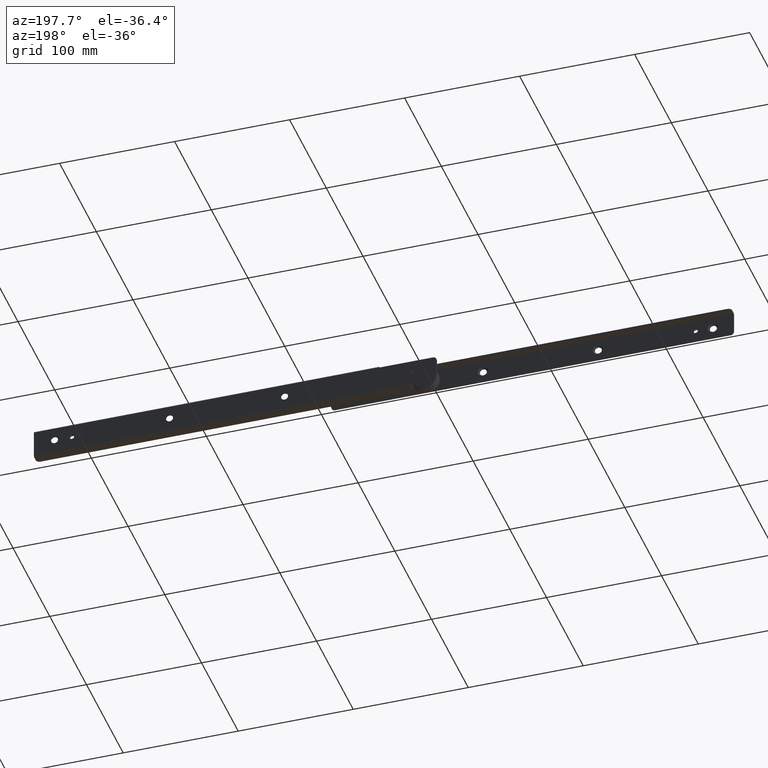
[diagram: clean part render]
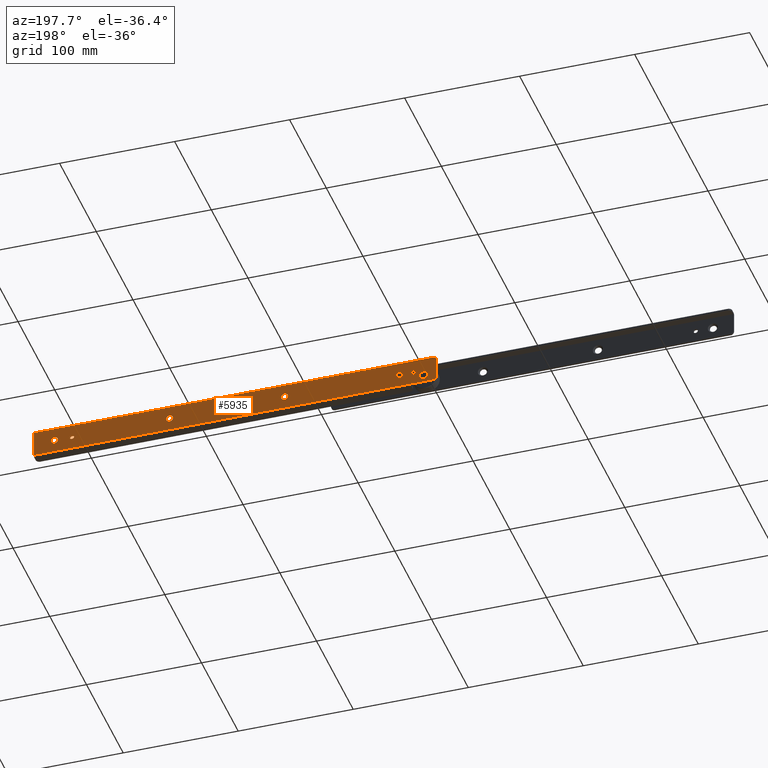
[diagram: same view with one face highlighted and labeled with its STEP entity id]
A machine part, auxiliary view. The second image highlights one B-rep face of the part: STEP entity #5935.
In plain terms, the highlighted face is a freeform B-spline surface patch.
Its self-contained STEP definition (entity closure, byte-faithful):
#3969=CARTESIAN_POINT('',(329.023201358756920,-4.527666E-009,-7.472384037742800));
#3970=VERTEX_POINT('',#3969);
#3971=CARTESIAN_POINT('',(332.0,0.0,-10.100000000000000));
#3972=VERTEX_POINT('',#3971);
#3973=CARTESIAN_POINT('',(329.023201358756860,-4.527666E-009,-7.472384037742800));
#3974=CARTESIAN_POINT('',(329.351904255216770,0.0,-10.100000000000001));
#3975=CARTESIAN_POINT('',(332.0,0.0,-10.100000000000000));
#3983=(BOUNDED_CURVE()B_SPLINE_CURVE(2,(#3973,#3974,#3975),.UNSPECIFIED.,.F.,.U.)B_SPLINE_CURVE_WITH_KNOTS((3,3),(0.271473932488504,0.500000000000000),.UNSPECIFIED.)CURVE()GEOMETRIC_REPRESENTATION_ITEM()RATIONAL_B_SPLINE_CURVE((0.954005423448024,0.732265058015110,1.0))REPRESENTATION_ITEM(''));
#3984=EDGE_CURVE('',#3970,#3972,#3983,.T.);
#4025=CARTESIAN_POINT('',(334.999885770837010,-2.177749E-009,-7.073820379165966));
#4026=VERTEX_POINT('',#4025);
#4032=CARTESIAN_POINT('',(332.0,0.0,-10.100000000000000));
#4033=CARTESIAN_POINT('',(334.999999999999940,0.0,-10.100000000000001));
#4034=CARTESIAN_POINT('',(335.0,0.0,-7.100000000000001));
#4035=CARTESIAN_POINT('',(335.000000000000060,0.0,-7.086909933213613));
#4036=CARTESIAN_POINT('',(334.999885770836950,-2.177749E-009,-7.073820379165966));
#4044=(BOUNDED_CURVE()B_SPLINE_CURVE(2,(#4032,#4033,#4034,#4035,#4036),.UNSPECIFIED.,.F.,.U.)B_SPLINE_CURVE_WITH_KNOTS((3,2,3),(0.500000000000000,0.750000000000000,0.751539896017035),.UNSPECIFIED.)CURVE()GEOMETRIC_REPRESENTATION_ITEM()RATIONAL_B_SPLINE_CURVE((1.0,0.707106781186548,1.0,0.998195899595731,0.996414024207677))REPRESENTATION_ITEM(''));
#4045=EDGE_CURVE('',#3972,#4026,#4044,.T.);
#4072=CARTESIAN_POINT('',(332.0,0.0,-4.100000000000001));
#4073=VERTEX_POINT('',#4072);
#4074=CARTESIAN_POINT('',(332.0,0.0,-4.100000000000001));
#4075=CARTESIAN_POINT('',(328.999999999999940,0.0,-4.100000000000000));
#4076=CARTESIAN_POINT('',(329.0,0.0,-7.100000000000001));
#4077=CARTESIAN_POINT('',(329.0,0.0,-7.286914814010594));
#4078=CARTESIAN_POINT('',(329.023201358756860,-4.527666E-009,-7.472384037742800));
#4086=(BOUNDED_CURVE()B_SPLINE_CURVE(2,(#4074,#4075,#4076,#4077,#4078),.UNSPECIFIED.,.F.,.U.)B_SPLINE_CURVE_WITH_KNOTS((3,2,3),(0.0,0.250000000000000,0.271473932488503),.UNSPECIFIED.)CURVE()GEOMETRIC_REPRESENTATION_ITEM()RATIONAL_B_SPLINE_CURVE((1.0,0.707106781186548,1.0,0.974841723171438,0.954005423448024))REPRESENTATION_ITEM(''));
#4087=EDGE_CURVE('',#4073,#3970,#4086,.T.);
#4089=CARTESIAN_POINT('',(334.999885770836950,-2.177749E-009,-7.073820379165967));
#4090=CARTESIAN_POINT('',(334.973933603384690,0.0,-4.100000000000001));
#4091=CARTESIAN_POINT('',(332.0,0.0,-4.100000000000001));
#4099=(BOUNDED_CURVE()B_SPLINE_CURVE(2,(#4089,#4090,#4091),.UNSPECIFIED.,.F.,.U.)B_SPLINE_CURVE_WITH_KNOTS((3,3),(0.751539896017035,1.0),.UNSPECIFIED.)CURVE()GEOMETRIC_REPRESENTATION_ITEM()RATIONAL_B_SPLINE_CURVE((0.996414024207675,0.708910881590817,1.0))REPRESENTATION_ITEM(''));
#4100=EDGE_CURVE('',#4026,#4073,#4099,.T.);
#4155=CARTESIAN_POINT('',(229.023201358756890,-4.527666E-009,-7.472384037742800));
#4156=VERTEX_POINT('',#4155);
#4157=CARTESIAN_POINT('',(232.0,0.0,-10.100000000000000));
#4158=VERTEX_POINT('',#4157);
#4159=CARTESIAN_POINT('',(229.023201358756860,-4.527666E-009,-7.472384037742800));
#4160=CARTESIAN_POINT('',(229.351904255216710,0.0,-10.100000000000001));
#4161=CARTESIAN_POINT('',(232.0,0.0,-10.100000000000000));
#4169=(BOUNDED_CURVE()B_SPLINE_CURVE(2,(#4159,#4160,#4161),.UNSPECIFIED.,.F.,.U.)B_SPLINE_CURVE_WITH_KNOTS((3,3),(0.271473932488504,0.500000000000000),.UNSPECIFIED.)CURVE()GEOMETRIC_REPRESENTATION_ITEM()RATIONAL_B_SPLINE_CURVE((0.954005423448024,0.732265058015110,1.0))REPRESENTATION_ITEM(''));
#4170=EDGE_CURVE('',#4156,#4158,#4169,.T.);
#4211=CARTESIAN_POINT('',(234.999885770836900,-2.177751E-009,-7.073820379165966));
#4212=VERTEX_POINT('',#4211);
#4218=CARTESIAN_POINT('',(232.0,0.0,-10.100000000000000));
#4219=CARTESIAN_POINT('',(235.000000000000030,0.0,-10.100000000000001));
#4220=CARTESIAN_POINT('',(235.0,0.0,-7.100000000000001));
#4221=CARTESIAN_POINT('',(235.000000000000030,0.0,-7.086909933213613));
#4222=CARTESIAN_POINT('',(234.999885770836930,-2.177751E-009,-7.073820379165966));
#4230=(BOUNDED_CURVE()B_SPLINE_CURVE(2,(#4218,#4219,#4220,#4221,#4222),.UNSPECIFIED.,.F.,.U.)B_SPLINE_CURVE_WITH_KNOTS((3,2,3),(0.500000000000000,0.750000000000000,0.751539896017035),.UNSPECIFIED.)CURVE()GEOMETRIC_REPRESENTATION_ITEM()RATIONAL_B_SPLINE_CURVE((1.0,0.707106781186548,1.0,0.998195899595731,0.996414024207677))REPRESENTATION_ITEM(''));
#4231=EDGE_CURVE('',#4158,#4212,#4230,.T.);
#4258=CARTESIAN_POINT('',(232.0,0.0,-4.100000000000001));
#4259=VERTEX_POINT('',#4258);
#4260=CARTESIAN_POINT('',(232.0,0.0,-4.100000000000001));
#4261=CARTESIAN_POINT('',(229.000000000000030,0.0,-4.100000000000000));
#4262=CARTESIAN_POINT('',(229.0,0.0,-7.100000000000001));
#4263=CARTESIAN_POINT('',(228.999999999999970,0.0,-7.286914814010594));
#4264=CARTESIAN_POINT('',(229.023201358756860,-4.527666E-009,-7.472384037742800));
#4272=(BOUNDED_CURVE()B_SPLINE_CURVE(2,(#4260,#4261,#4262,#4263,#4264),.UNSPECIFIED.,.F.,.U.)B_SPLINE_CURVE_WITH_KNOTS((3,2,3),(0.0,0.250000000000000,0.271473932488503),.UNSPECIFIED.)CURVE()GEOMETRIC_REPRESENTATION_ITEM()RATIONAL_B_SPLINE_CURVE((1.0,0.707106781186548,1.0,0.974841723171438,0.954005423448024))REPRESENTATION_ITEM(''));
#4273=EDGE_CURVE('',#4259,#4156,#4272,.T.);
#4275=CARTESIAN_POINT('',(234.999885770836900,-2.177751E-009,-7.073820379165967));
#4276=CARTESIAN_POINT('',(234.973933603384780,0.0,-4.100000000000001));
#4277=CARTESIAN_POINT('',(232.0,0.0,-4.100000000000001));
#4285=(BOUNDED_CURVE()B_SPLINE_CURVE(2,(#4275,#4276,#4277),.UNSPECIFIED.,.F.,.U.)B_SPLINE_CURVE_WITH_KNOTS((3,3),(0.751539896017035,1.0),.UNSPECIFIED.)CURVE()GEOMETRIC_REPRESENTATION_ITEM()RATIONAL_B_SPLINE_CURVE((0.996414024207675,0.708910881590817,1.0))REPRESENTATION_ITEM(''));
#4286=EDGE_CURVE('',#4212,#4259,#4285,.T.);
#4341=CARTESIAN_POINT('',(129.023201358756890,-4.527666E-009,-7.472384037742800));
#4342=VERTEX_POINT('',#4341);
#4343=CARTESIAN_POINT('',(132.0,0.0,-10.100000000000000));
#4344=VERTEX_POINT('',#4343);
#4345=CARTESIAN_POINT('',(129.023201358756920,-4.527666E-009,-7.472384037742800));
#4346=CARTESIAN_POINT('',(129.351904255216770,0.0,-10.100000000000001));
#4347=CARTESIAN_POINT('',(132.0,0.0,-10.100000000000000));
#4355=(BOUNDED_CURVE()B_SPLINE_CURVE(2,(#4345,#4346,#4347),.UNSPECIFIED.,.F.,.U.)B_SPLINE_CURVE_WITH_KNOTS((3,3),(0.271473932488504,0.500000000000000),.UNSPECIFIED.)CURVE()GEOMETRIC_REPRESENTATION_ITEM()RATIONAL_B_SPLINE_CURVE((0.954005423448024,0.732265058015110,1.0))REPRESENTATION_ITEM(''));
#4356=EDGE_CURVE('',#4342,#4344,#4355,.T.);
#4397=CARTESIAN_POINT('',(134.999885770836900,-2.177751E-009,-7.073820379165966));
#4398=VERTEX_POINT('',#4397);
#4404=CARTESIAN_POINT('',(132.0,0.0,-10.100000000000000));
#4405=CARTESIAN_POINT('',(135.0,0.0,-10.100000000000001));
#4406=CARTESIAN_POINT('',(135.0,0.0,-7.100000000000001));
#4407=CARTESIAN_POINT('',(135.000000000000030,0.0,-7.086909933213613));
#4408=CARTESIAN_POINT('',(134.999885770836900,-2.177751E-009,-7.073820379165966));
#4416=(BOUNDED_CURVE()B_SPLINE_CURVE(2,(#4404,#4405,#4406,#4407,#4408),.UNSPECIFIED.,.F.,.U.)B_SPLINE_CURVE_WITH_KNOTS((3,2,3),(0.500000000000000,0.750000000000000,0.751539896017035),.UNSPECIFIED.)CURVE()GEOMETRIC_REPRESENTATION_ITEM()RATIONAL_B_SPLINE_CURVE((1.0,0.707106781186548,1.0,0.998195899595731,0.996414024207677))REPRESENTATION_ITEM(''));
#4417=EDGE_CURVE('',#4344,#4398,#4416,.T.);
#4444=CARTESIAN_POINT('',(132.0,0.0,-4.100000000000001));
#4445=VERTEX_POINT('',#4444);
#4446=CARTESIAN_POINT('',(132.0,0.0,-4.100000000000001));
#4447=CARTESIAN_POINT('',(129.0,0.0,-4.100000000000000));
#4448=CARTESIAN_POINT('',(129.0,0.0,-7.100000000000001));
#4449=CARTESIAN_POINT('',(129.000000000000060,0.0,-7.286914814010594));
#4450=CARTESIAN_POINT('',(129.023201358756920,-4.527666E-009,-7.472384037742800));
#4458=(BOUNDED_CURVE()B_SPLINE_CURVE(2,(#4446,#4447,#4448,#4449,#4450),.UNSPECIFIED.,.F.,.U.)B_SPLINE_CURVE_WITH_KNOTS((3,2,3),(0.0,0.250000000000000,0.271473932488503),.UNSPECIFIED.)CURVE()GEOMETRIC_REPRESENTATION_ITEM()RATIONAL_B_SPLINE_CURVE((1.0,0.707106781186548,1.0,0.974841723171438,0.954005423448024))REPRESENTATION_ITEM(''));
#4459=EDGE_CURVE('',#4445,#4342,#4458,.T.);
#4461=CARTESIAN_POINT('',(134.999885770836900,-2.177751E-009,-7.073820379165967));
#4462=CARTESIAN_POINT('',(134.973933603384720,0.0,-4.100000000000001));
#4463=CARTESIAN_POINT('',(132.0,0.0,-4.100000000000001));
#4471=(BOUNDED_CURVE()B_SPLINE_CURVE(2,(#4461,#4462,#4463),.UNSPECIFIED.,.F.,.U.)B_SPLINE_CURVE_WITH_KNOTS((3,3),(0.751539896017035,1.0),.UNSPECIFIED.)CURVE()GEOMETRIC_REPRESENTATION_ITEM()RATIONAL_B_SPLINE_CURVE((0.996414024207675,0.708910881590817,1.0))REPRESENTATION_ITEM(''));
#4472=EDGE_CURVE('',#4398,#4445,#4471,.T.);
#4527=CARTESIAN_POINT('',(29.023201358756861,-4.527666E-009,-7.472384037742597));
#4528=VERTEX_POINT('',#4527);
#4529=CARTESIAN_POINT('',(32.0,0.0,-10.099999999999801));
#4530=VERTEX_POINT('',#4529);
#4531=CARTESIAN_POINT('',(29.023201358756854,-4.527666E-009,-7.472384037742597));
#4532=CARTESIAN_POINT('',(29.351904255216727,0.0,-10.099999999999801));
#4533=CARTESIAN_POINT('',(32.0,0.0,-10.099999999999801));
#4541=(BOUNDED_CURVE()B_SPLINE_CURVE(2,(#4531,#4532,#4533),.UNSPECIFIED.,.F.,.U.)B_SPLINE_CURVE_WITH_KNOTS((3,3),(0.271473932488504,0.500000000000000),.UNSPECIFIED.)CURVE()GEOMETRIC_REPRESENTATION_ITEM()RATIONAL_B_SPLINE_CURVE((0.954005423448024,0.732265058015110,1.0))REPRESENTATION_ITEM(''));
#4542=EDGE_CURVE('',#4528,#4530,#4541,.T.);
#4583=CARTESIAN_POINT('',(34.999885770836912,-2.177750E-009,-7.073820379165763));
#4584=VERTEX_POINT('',#4583);
#4590=CARTESIAN_POINT('',(32.0,0.0,-10.099999999999801));
#4591=CARTESIAN_POINT('',(34.999999999999993,0.0,-10.099999999999801));
#4592=CARTESIAN_POINT('',(35.0,0.0,-7.099999999999799));
#4593=CARTESIAN_POINT('',(35.0,0.0,-7.086909933213412));
#4594=CARTESIAN_POINT('',(34.999885770836912,-2.177750E-009,-7.073820379165764));
#4602=(BOUNDED_CURVE()B_SPLINE_CURVE(2,(#4590,#4591,#4592,#4593,#4594),.UNSPECIFIED.,.F.,.U.)B_SPLINE_CURVE_WITH_KNOTS((3,2,3),(0.500000000000000,0.750000000000000,0.751539896017035),.UNSPECIFIED.)CURVE()GEOMETRIC_REPRESENTATION_ITEM()RATIONAL_B_SPLINE_CURVE((1.0,0.707106781186548,1.0,0.998195899595731,0.996414024207677))REPRESENTATION_ITEM(''));
#4603=EDGE_CURVE('',#4530,#4584,#4602,.T.);
#4630=CARTESIAN_POINT('',(32.0,0.0,-4.099999999999799));
#4631=VERTEX_POINT('',#4630);
#4632=CARTESIAN_POINT('',(32.0,0.0,-4.099999999999799));
#4633=CARTESIAN_POINT('',(29.0,0.0,-4.099999999999799));
#4634=CARTESIAN_POINT('',(29.0,0.0,-7.099999999999799));
#4635=CARTESIAN_POINT('',(29.000000000000007,0.0,-7.286914814010393));
#4636=CARTESIAN_POINT('',(29.023201358756854,-4.527666E-009,-7.472384037742597));
#4644=(BOUNDED_CURVE()B_SPLINE_CURVE(2,(#4632,#4633,#4634,#4635,#4636),.UNSPECIFIED.,.F.,.U.)B_SPLINE_CURVE_WITH_KNOTS((3,2,3),(0.0,0.250000000000000,0.271473932488503),.UNSPECIFIED.)CURVE()GEOMETRIC_REPRESENTATION_ITEM()RATIONAL_B_SPLINE_CURVE((1.0,0.707106781186548,1.0,0.974841723171438,0.954005423448024))REPRESENTATION_ITEM(''));
#4645=EDGE_CURVE('',#4631,#4528,#4644,.T.);
#4647=CARTESIAN_POINT('',(34.999885770836919,-2.177750E-009,-7.073820379165763));
#4648=CARTESIAN_POINT('',(34.973933603384737,0.0,-4.099999999999798));
#4649=CARTESIAN_POINT('',(32.0,0.0,-4.099999999999799));
#4657=(BOUNDED_CURVE()B_SPLINE_CURVE(2,(#4647,#4648,#4649),.UNSPECIFIED.,.F.,.U.)B_SPLINE_CURVE_WITH_KNOTS((3,3),(0.751539896017035,1.0),.UNSPECIFIED.)CURVE()GEOMETRIC_REPRESENTATION_ITEM()RATIONAL_B_SPLINE_CURVE((0.996414024207675,0.708910881590818,1.0))REPRESENTATION_ITEM(''));
#4658=EDGE_CURVE('',#4584,#4631,#4657,.T.);
#4717=CARTESIAN_POINT('',(8.070621898061873,6.033785E-017,-12.251799000740220));
#4718=VERTEX_POINT('',#4717);
#4719=CARTESIAN_POINT('',(11.0,0.0,-15.549999999999800));
#4720=VERTEX_POINT('',#4719);
#4721=CARTESIAN_POINT('',(8.070621898061873,6.033785E-017,-12.251799000740229));
#4722=CARTESIAN_POINT('',(8.050000000000001,0.0,-12.425288839930291));
#4723=CARTESIAN_POINT('',(8.050000000000001,0.0,-12.599999999999801));
#4724=CARTESIAN_POINT('',(8.050000000000001,0.0,-15.549999999999795));
#4725=CARTESIAN_POINT('',(11.0,0.0,-15.549999999999800));
#4733=(BOUNDED_CURVE()B_SPLINE_CURVE(2,(#4721,#4722,#4723,#4724,#4725),.UNSPECIFIED.,.F.,.U.)B_SPLINE_CURVE_WITH_KNOTS((3,2,3),(0.229562472705394,0.250000000000000,0.500000000000000),.UNSPECIFIED.)CURVE()GEOMETRIC_REPRESENTATION_ITEM()RATIONAL_B_SPLINE_CURVE((0.956026752599763,0.976055947384381,1.0,0.707106781186548,1.0))REPRESENTATION_ITEM(''));
#4734=EDGE_CURVE('',#4718,#4720,#4733,.T.);
#4775=CARTESIAN_POINT('',(13.944497655040470,-3.816392E-017,-12.780093196598660));
#4776=VERTEX_POINT('',#4775);
#4782=CARTESIAN_POINT('',(11.0,0.0,-15.549999999999800));
#4783=CARTESIAN_POINT('',(13.775082887984260,0.0,-15.549999999999800));
#4784=CARTESIAN_POINT('',(13.944497655040465,-3.816392E-017,-12.780093196598656));
#4792=(BOUNDED_CURVE()B_SPLINE_CURVE(2,(#4782,#4783,#4784),.UNSPECIFIED.,.F.,.U.)B_SPLINE_CURVE_WITH_KNOTS((3,3),(0.500000000000000,0.739332961659366),.UNSPECIFIED.)CURVE()GEOMETRIC_REPRESENTATION_ITEM()RATIONAL_B_SPLINE_CURVE((1.0,0.719603993965726,0.976072040424575))REPRESENTATION_ITEM(''));
#4793=EDGE_CURVE('',#4720,#4776,#4792,.T.);
#4816=CARTESIAN_POINT('',(11.0,0.0,-9.649999999999800));
#4817=VERTEX_POINT('',#4816);
#4818=CARTESIAN_POINT('',(11.0,0.0,-9.649999999999800));
#4819=CARTESIAN_POINT('',(8.379885161093478,0.0,-9.649999999999801));
#4820=CARTESIAN_POINT('',(8.070621898061873,6.033785E-017,-12.251799000740222));
#4828=(BOUNDED_CURVE()B_SPLINE_CURVE(2,(#4818,#4819,#4820),.UNSPECIFIED.,.F.,.U.)B_SPLINE_CURVE_WITH_KNOTS((3,3),(0.0,0.229562472705394),.UNSPECIFIED.)CURVE()GEOMETRIC_REPRESENTATION_ITEM()RATIONAL_B_SPLINE_CURVE((1.0,0.731050833802167,0.956026752599763))REPRESENTATION_ITEM(''));
#4829=EDGE_CURVE('',#4817,#4718,#4828,.T.);
#4831=CARTESIAN_POINT('',(13.944497655040465,-3.816392E-017,-12.780093196598656));
#4832=CARTESIAN_POINT('',(13.950000000000005,0.0,-12.690130656715603));
#4833=CARTESIAN_POINT('',(13.949999999999999,0.0,-12.599999999999801));
#4834=CARTESIAN_POINT('',(13.949999999999999,0.0,-9.649999999999800));
#4835=CARTESIAN_POINT('',(11.0,0.0,-9.649999999999800));
#4843=(BOUNDED_CURVE()B_SPLINE_CURVE(2,(#4831,#4832,#4833,#4834,#4835),.UNSPECIFIED.,.F.,.U.)B_SPLINE_CURVE_WITH_KNOTS((3,2,3),(0.739332961659366,0.750000000000000,1.0),.UNSPECIFIED.)CURVE()GEOMETRIC_REPRESENTATION_ITEM()RATIONAL_B_SPLINE_CURVE((0.976072040424575,0.987502787220821,1.0,0.707106781186548,1.0))REPRESENTATION_ITEM(''));
#4844=EDGE_CURVE('',#4776,#4817,#4843,.T.);
#4903=CARTESIAN_POINT('',(18.013980948035350,-3.549285E-017,-6.863931524269974));
#4904=VERTEX_POINT('',#4903);
#4905=CARTESIAN_POINT('',(20.0,0.0,-9.099999999999799));
#4906=VERTEX_POINT('',#4905);
#4907=CARTESIAN_POINT('',(18.013980948035350,-3.549285E-017,-6.863931524269974));
#4908=CARTESIAN_POINT('',(18.000000000000004,0.0,-6.981551754211840));
#4909=CARTESIAN_POINT('',(18.0,0.0,-7.099999999999799));
#4910=CARTESIAN_POINT('',(18.000000000000007,0.0,-9.099999999999799));
#4911=CARTESIAN_POINT('',(20.0,0.0,-9.099999999999799));
#4919=(BOUNDED_CURVE()B_SPLINE_CURVE(2,(#4907,#4908,#4909,#4910,#4911),.UNSPECIFIED.,.F.,.U.)B_SPLINE_CURVE_WITH_KNOTS((3,2,3),(0.229562472423634,0.250000000000000,0.500000000000000),.UNSPECIFIED.)CURVE()GEOMETRIC_REPRESENTATION_ITEM()RATIONAL_B_SPLINE_CURVE((0.956026752047501,0.976055947054278,1.0,0.707106781186548,1.0))REPRESENTATION_ITEM(''));
#4920=EDGE_CURVE('',#4904,#4906,#4919,.T.);
#4961=CARTESIAN_POINT('',(21.996269596842609,5.551115E-017,-7.222097079087931));
#4962=VERTEX_POINT('',#4961);
#4968=CARTESIAN_POINT('',(20.0,0.0,-9.099999999999799));
#4969=CARTESIAN_POINT('',(21.881412133776614,0.0,-9.099999999999801));
#4970=CARTESIAN_POINT('',(21.996269596842609,5.551115E-017,-7.222097079087931));
#4978=(BOUNDED_CURVE()B_SPLINE_CURVE(2,(#4968,#4969,#4970),.UNSPECIFIED.,.F.,.U.)B_SPLINE_CURVE_WITH_KNOTS((3,3),(0.500000000000000,0.739332962238785),.UNSPECIFIED.)CURVE()GEOMETRIC_REPRESENTATION_ITEM()RATIONAL_B_SPLINE_CURVE((1.0,0.719603993286895,0.976072041666380))REPRESENTATION_ITEM(''));
#4979=EDGE_CURVE('',#4906,#4962,#4978,.T.);
#5002=CARTESIAN_POINT('',(20.0,0.0,-5.099999999999799));
#5003=VERTEX_POINT('',#5002);
#5004=CARTESIAN_POINT('',(20.0,0.0,-5.099999999999799));
#5005=CARTESIAN_POINT('',(18.223650959655906,0.0,-5.099999999999800));
#5006=CARTESIAN_POINT('',(18.013980948035346,-3.549285E-017,-6.863931524269974));
#5014=(BOUNDED_CURVE()B_SPLINE_CURVE(2,(#5004,#5005,#5006),.UNSPECIFIED.,.F.,.U.)B_SPLINE_CURVE_WITH_KNOTS((3,3),(0.0,0.229562472423634),.UNSPECIFIED.)CURVE()GEOMETRIC_REPRESENTATION_ITEM()RATIONAL_B_SPLINE_CURVE((1.0,0.731050834132270,0.956026752047501))REPRESENTATION_ITEM(''));
#5015=EDGE_CURVE('',#5003,#4904,#5014,.T.);
#5017=CARTESIAN_POINT('',(21.996269596842605,5.551115E-017,-7.222097079087931));
#5018=CARTESIAN_POINT('',(22.000000000000004,0.0,-7.161105526615446));
#5019=CARTESIAN_POINT('',(22.0,0.0,-7.099999999999799));
#5020=CARTESIAN_POINT('',(22.000000000000007,0.0,-5.099999999999798));
#5021=CARTESIAN_POINT('',(20.0,0.0,-5.099999999999799));
#5029=(BOUNDED_CURVE()B_SPLINE_CURVE(2,(#5017,#5018,#5019,#5020,#5021),.UNSPECIFIED.,.F.,.U.)B_SPLINE_CURVE_WITH_KNOTS((3,2,3),(0.739332962238784,0.750000000000000,1.0),.UNSPECIFIED.)CURVE()GEOMETRIC_REPRESENTATION_ITEM()RATIONAL_B_SPLINE_CURVE((0.976072041666378,0.987502787899652,1.0,0.707106781186548,1.0))REPRESENTATION_ITEM(''));
#5030=EDGE_CURVE('',#4962,#5003,#5029,.T.);
#5089=CARTESIAN_POINT('',(315.013980948035280,-3.549285E-017,-6.863931524270178));
#5090=VERTEX_POINT('',#5089);
#5091=CARTESIAN_POINT('',(317.0,0.0,-9.100000000000000));
#5092=VERTEX_POINT('',#5091);
#5093=CARTESIAN_POINT('',(315.013980948035280,-3.549285E-017,-6.863931524270178));
#5094=CARTESIAN_POINT('',(315.000000000000060,0.0,-6.981551754212042));
#5095=CARTESIAN_POINT('',(315.0,0.0,-7.100000000000001));
#5096=CARTESIAN_POINT('',(315.000000000000060,0.0,-9.100000000000000));
#5097=CARTESIAN_POINT('',(317.0,0.0,-9.100000000000000));
#5105=(BOUNDED_CURVE()B_SPLINE_CURVE(2,(#5093,#5094,#5095,#5096,#5097),.UNSPECIFIED.,.F.,.U.)B_SPLINE_CURVE_WITH_KNOTS((3,2,3),(0.229562472423634,0.250000000000000,0.500000000000000),.UNSPECIFIED.)CURVE()GEOMETRIC_REPRESENTATION_ITEM()RATIONAL_B_SPLINE_CURVE((0.956026752047501,0.976055947054278,1.0,0.707106781186548,1.0))REPRESENTATION_ITEM(''));
#5106=EDGE_CURVE('',#5090,#5092,#5105,.T.);
#5147=CARTESIAN_POINT('',(318.996269596842580,5.551115E-017,-7.222097079088133));
#5148=VERTEX_POINT('',#5147);
#5154=CARTESIAN_POINT('',(317.0,0.0,-9.100000000000000));
#5155=CARTESIAN_POINT('',(318.881412133776620,0.0,-9.100000000000000));
#5156=CARTESIAN_POINT('',(318.996269596842580,5.551115E-017,-7.222097079088133));
#5164=(BOUNDED_CURVE()B_SPLINE_CURVE(2,(#5154,#5155,#5156),.UNSPECIFIED.,.F.,.U.)B_SPLINE_CURVE_WITH_KNOTS((3,3),(0.500000000000000,0.739332962238785),.UNSPECIFIED.)CURVE()GEOMETRIC_REPRESENTATION_ITEM()RATIONAL_B_SPLINE_CURVE((1.0,0.719603993286895,0.976072041666380))REPRESENTATION_ITEM(''));
#5165=EDGE_CURVE('',#5092,#5148,#5164,.T.);
#5188=CARTESIAN_POINT('',(317.0,0.0,-5.100000000000001));
#5189=VERTEX_POINT('',#5188);
#5190=CARTESIAN_POINT('',(317.0,0.0,-5.100000000000001));
#5191=CARTESIAN_POINT('',(315.223650959655910,0.0,-5.100000000000000));
#5192=CARTESIAN_POINT('',(315.013980948035280,-3.549285E-017,-6.863931524270178));
#5200=(BOUNDED_CURVE()B_SPLINE_CURVE(2,(#5190,#5191,#5192),.UNSPECIFIED.,.F.,.U.)B_SPLINE_CURVE_WITH_KNOTS((3,3),(0.0,0.229562472423634),.UNSPECIFIED.)CURVE()GEOMETRIC_REPRESENTATION_ITEM()RATIONAL_B_SPLINE_CURVE((1.0,0.731050834132270,0.956026752047501))REPRESENTATION_ITEM(''));
#5201=EDGE_CURVE('',#5189,#5090,#5200,.T.);
#5203=CARTESIAN_POINT('',(318.996269596842640,5.551115E-017,-7.222097079088133));
#5204=CARTESIAN_POINT('',(319.0,0.0,-7.161105526615650));
#5205=CARTESIAN_POINT('',(319.0,0.0,-7.100000000000001));
#5206=CARTESIAN_POINT('',(319.0,0.0,-5.100000000000001));
#5207=CARTESIAN_POINT('',(317.0,0.0,-5.100000000000001));
#5215=(BOUNDED_CURVE()B_SPLINE_CURVE(2,(#5203,#5204,#5205,#5206,#5207),.UNSPECIFIED.,.F.,.U.)B_SPLINE_CURVE_WITH_KNOTS((3,2,3),(0.739332962238784,0.750000000000000,1.0),.UNSPECIFIED.)CURVE()GEOMETRIC_REPRESENTATION_ITEM()RATIONAL_B_SPLINE_CURVE((0.976072041666378,0.987502787899651,1.0,0.707106781186548,1.0))REPRESENTATION_ITEM(''));
#5216=EDGE_CURVE('',#5148,#5189,#5215,.T.);
#5528=CARTESIAN_POINT('',(3.0,0.0,4.400000000000205));
#5529=VERTEX_POINT('',#5528);
#5535=CARTESIAN_POINT('',(0.0,0.0,1.400000000000202));
#5536=VERTEX_POINT('',#5535);
#5537=CARTESIAN_POINT('',(0.0,0.0,1.400000000000204));
#5538=CARTESIAN_POINT('',(-4.336809E-016,0.0,2.642640687119489));
#5539=CARTESIAN_POINT('',(0.878679656440356,0.0,3.521320343559846));
#5540=CARTESIAN_POINT('',(1.757359312880714,0.0,4.400000000000204));
#5541=CARTESIAN_POINT('',(3.0,0.0,4.400000000000204));
#5549=(BOUNDED_CURVE()B_SPLINE_CURVE(2,(#5537,#5538,#5539,#5540,#5541),.UNSPECIFIED.,.F.,.U.)B_SPLINE_CURVE_WITH_KNOTS((3,2,3),(0.0,0.500000000000000,1.0),.UNSPECIFIED.)CURVE()GEOMETRIC_REPRESENTATION_ITEM()RATIONAL_B_SPLINE_CURVE((1.0,0.923879532511287,1.0,0.923879532511287,1.0))REPRESENTATION_ITEM(''));
#5550=EDGE_CURVE('',#5536,#5529,#5549,.T.);
#5574=CARTESIAN_POINT('',(3.0,0.0,-18.600000000000001));
#5575=VERTEX_POINT('',#5574);
#5576=CARTESIAN_POINT('',(0.0,0.0,-15.600000000000000));
#5577=VERTEX_POINT('',#5576);
#5578=CARTESIAN_POINT('',(3.0,0.0,-18.600000000000001));
#5579=CARTESIAN_POINT('',(0.0,0.0,-18.599999999999991));
#5580=CARTESIAN_POINT('',(0.0,0.0,-15.600000000000000));
#5588=(BOUNDED_CURVE()B_SPLINE_CURVE(2,(#5578,#5579,#5580),.UNSPECIFIED.,.F.,.U.)CURVE()GEOMETRIC_REPRESENTATION_ITEM()QUASI_UNIFORM_CURVE()RATIONAL_B_SPLINE_CURVE((1.0,0.707106781186548,1.0))REPRESENTATION_ITEM(''));
#5589=EDGE_CURVE('',#5575,#5577,#5588,.T.);
#5626=CARTESIAN_POINT('',(50.0,0.0,4.400000000000205));
#5627=VERTEX_POINT('',#5626);
#5628=CARTESIAN_POINT('',(3.0,0.0,4.400000000000205));
#5629=CARTESIAN_POINT('',(50.0,0.0,4.400000000000205));
#5630=QUASI_UNIFORM_CURVE('',1,(#5628,#5629),.UNSPECIFIED.,.F.,.U.);
#5631=EDGE_CURVE('',#5529,#5627,#5630,.T.);
#5697=CARTESIAN_POINT('',(22.0,0.0,-18.600000000000001));
#5698=VERTEX_POINT('',#5697);
#5699=CARTESIAN_POINT('',(22.0,0.0,-18.600000000000001));
#5700=CARTESIAN_POINT('',(3.0,0.0,-18.600000000000001));
#5701=QUASI_UNIFORM_CURVE('',1,(#5699,#5700),.UNSPECIFIED.,.F.,.U.);
#5702=EDGE_CURVE('',#5698,#5575,#5701,.T.);
#5752=CARTESIAN_POINT('',(0.0,0.0,-15.600000000000000));
#5753=CARTESIAN_POINT('',(0.0,0.0,1.400000000000202));
#5754=QUASI_UNIFORM_CURVE('',1,(#5752,#5753),.UNSPECIFIED.,.F.,.U.);
#5755=EDGE_CURVE('',#5577,#5536,#5754,.T.);
#5807=CARTESIAN_POINT('',(350.0,9.237056E-014,-18.600000000000001));
#5808=VERTEX_POINT('',#5807);
#5822=CARTESIAN_POINT('',(350.0,0.0,4.400000000000205));
#5823=VERTEX_POINT('',#5822);
#5824=CARTESIAN_POINT('',(350.0,9.237056E-014,-18.600000000000001));
#5825=CARTESIAN_POINT('',(350.0,0.0,4.400000000000205));
#5826=QUASI_UNIFORM_CURVE('',1,(#5824,#5825),.UNSPECIFIED.,.F.,.U.);
#5827=EDGE_CURVE('',#5808,#5823,#5826,.T.);
#5859=CARTESIAN_POINT('',(350.0,0.0,4.400000000000205));
#5860=CARTESIAN_POINT('',(50.0,0.0,4.400000000000205));
#5861=QUASI_UNIFORM_CURVE('',1,(#5859,#5860),.UNSPECIFIED.,.F.,.U.);
#5862=EDGE_CURVE('',#5823,#5627,#5861,.T.);
#5874=CARTESIAN_POINT('',(-17.482499321632091,0.0,5.548850171329299));
#5875=CARTESIAN_POINT('',(-17.482499321632091,0.0,-19.748850582601140));
#5876=CARTESIAN_POINT('',(367.482508709363570,0.0,5.548850171329299));
#5877=CARTESIAN_POINT('',(367.482508709363570,0.0,-19.748850582601140));
#5878=B_SPLINE_SURFACE_WITH_KNOTS('',1,1,((#5874,#5876),(#5875,#5877)),.UNSPECIFIED.,.F.,.F.,.U.,(2,2),(2,2),(0.0,25.297700753930439),(0.0,384.965008030995700),.UNSPECIFIED.);
#5879=ORIENTED_EDGE('',*,*,#5702,.T.);
#5880=ORIENTED_EDGE('',*,*,#5589,.T.);
#5881=ORIENTED_EDGE('',*,*,#5755,.T.);
#5882=ORIENTED_EDGE('',*,*,#5550,.T.);
#5883=ORIENTED_EDGE('',*,*,#5631,.T.);
#5884=ORIENTED_EDGE('',*,*,#5862,.F.);
#5885=ORIENTED_EDGE('',*,*,#5827,.F.);
#5886=CARTESIAN_POINT('',(350.0,9.237056E-014,-18.600000000000001));
#5887=CARTESIAN_POINT('',(22.0,0.0,-18.600000000000001));
#5888=QUASI_UNIFORM_CURVE('',1,(#5886,#5887),.UNSPECIFIED.,.F.,.U.);
#5889=EDGE_CURVE('',#5808,#5698,#5888,.T.);
#5890=ORIENTED_EDGE('',*,*,#5889,.T.);
#5891=EDGE_LOOP('',(#5879,#5880,#5881,#5882,#5883,#5884,#5885,#5890));
#5892=FACE_OUTER_BOUND('',#5891,.T.);
#5893=ORIENTED_EDGE('',*,*,#5165,.T.);
#5894=ORIENTED_EDGE('',*,*,#5216,.T.);
#5895=ORIENTED_EDGE('',*,*,#5201,.T.);
#5896=ORIENTED_EDGE('',*,*,#5106,.T.);
#5897=EDGE_LOOP('',(#5893,#5894,#5895,#5896));
#5898=FACE_BOUND('',#5897,.T.);
#5899=ORIENTED_EDGE('',*,*,#4979,.T.);
#5900=ORIENTED_EDGE('',*,*,#5030,.T.);
#5901=ORIENTED_EDGE('',*,*,#5015,.T.);
#5902=ORIENTED_EDGE('',*,*,#4920,.T.);
#5903=EDGE_LOOP('',(#5899,#5900,#5901,#5902));
#5904=FACE_BOUND('',#5903,.T.);
#5905=ORIENTED_EDGE('',*,*,#4793,.T.);
#5906=ORIENTED_EDGE('',*,*,#4844,.T.);
#5907=ORIENTED_EDGE('',*,*,#4829,.T.);
#5908=ORIENTED_EDGE('',*,*,#4734,.T.);
#5909=EDGE_LOOP('',(#5905,#5906,#5907,#5908));
#5910=FACE_BOUND('',#5909,.T.);
#5911=ORIENTED_EDGE('',*,*,#4603,.T.);
#5912=ORIENTED_EDGE('',*,*,#4658,.T.);
#5913=ORIENTED_EDGE('',*,*,#4645,.T.);
#5914=ORIENTED_EDGE('',*,*,#4542,.T.);
#5915=EDGE_LOOP('',(#5911,#5912,#5913,#5914));
#5916=FACE_BOUND('',#5915,.T.);
#5917=ORIENTED_EDGE('',*,*,#4417,.T.);
#5918=ORIENTED_EDGE('',*,*,#4472,.T.);
#5919=ORIENTED_EDGE('',*,*,#4459,.T.);
#5920=ORIENTED_EDGE('',*,*,#4356,.T.);
#5921=EDGE_LOOP('',(#5917,#5918,#5919,#5920));
#5922=FACE_BOUND('',#5921,.T.);
#5923=ORIENTED_EDGE('',*,*,#4231,.T.);
#5924=ORIENTED_EDGE('',*,*,#4286,.T.);
#5925=ORIENTED_EDGE('',*,*,#4273,.T.);
#5926=ORIENTED_EDGE('',*,*,#4170,.T.);
#5927=EDGE_LOOP('',(#5923,#5924,#5925,#5926));
#5928=FACE_BOUND('',#5927,.T.);
#5929=ORIENTED_EDGE('',*,*,#4045,.T.);
#5930=ORIENTED_EDGE('',*,*,#4100,.T.);
#5931=ORIENTED_EDGE('',*,*,#4087,.T.);
#5932=ORIENTED_EDGE('',*,*,#3984,.T.);
#5933=EDGE_LOOP('',(#5929,#5930,#5931,#5932));
#5934=FACE_BOUND('',#5933,.T.);
#5935=ADVANCED_FACE('',(#5892,#5898,#5904,#5910,#5916,#5922,#5928,#5934),#5878,.F.);